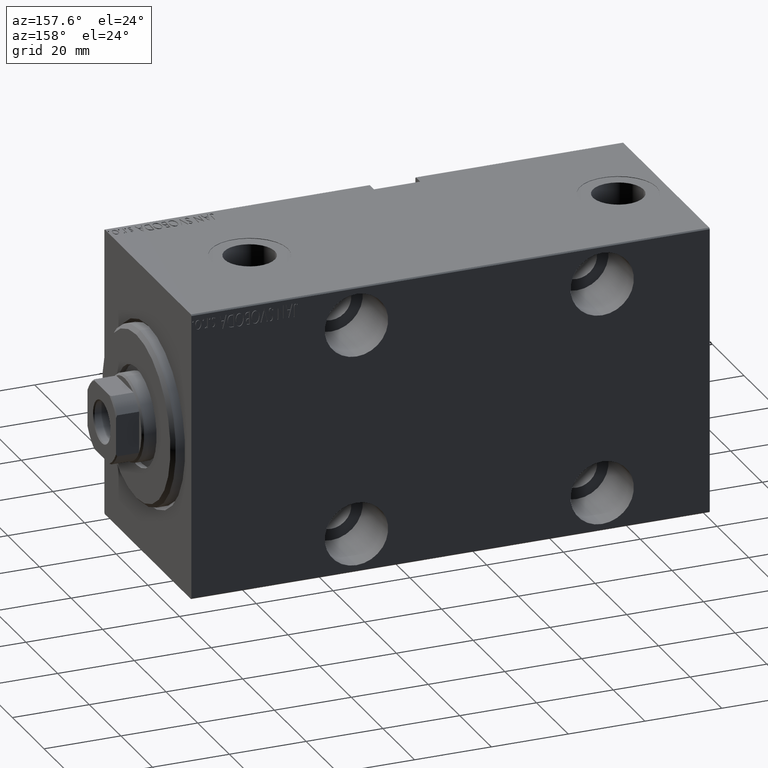
[diagram: clean part render]
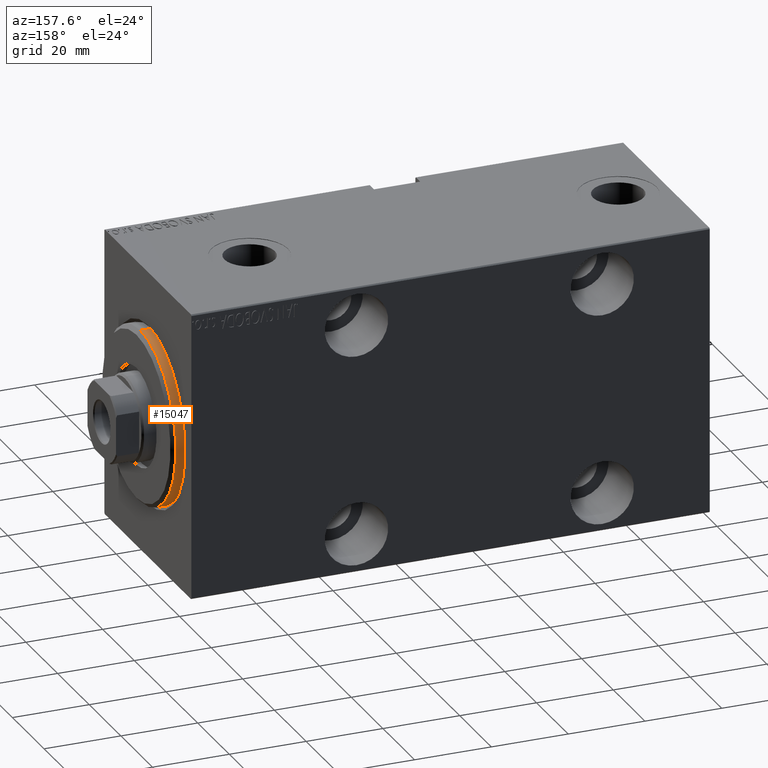
[diagram: same view with one face highlighted and labeled with its STEP entity id]
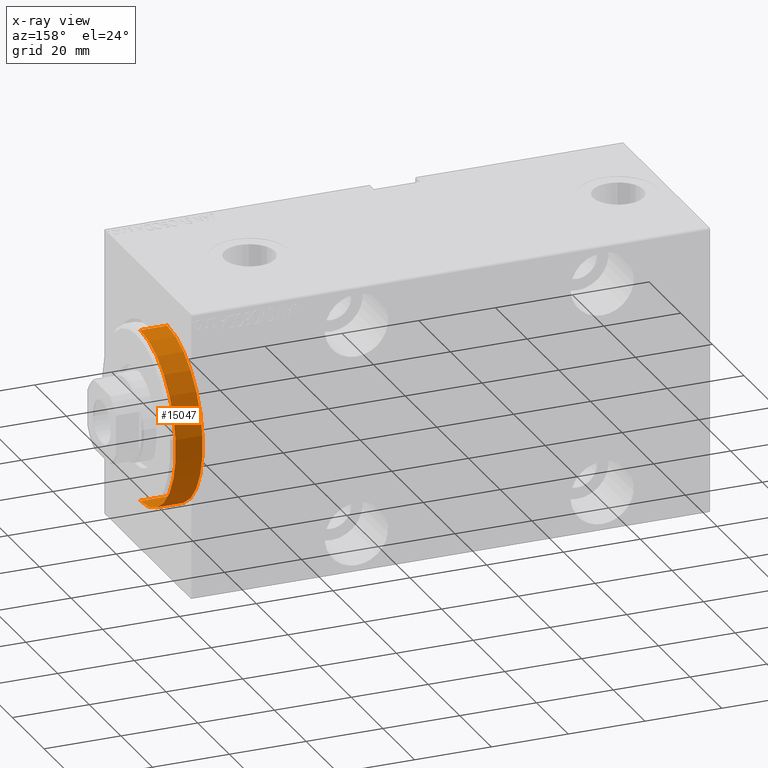
[diagram: x-ray of the same camera — body ghosted, the highlighted face saturated]
A machine part, auxiliary view. The second image highlights one B-rep face of the part: STEP entity #15047.
The next image is the same camera in x-ray: the body ghosted, the highlighted face saturated — about 0% of this face is hidden behind the body in this view.
In plain terms, the highlighted cylindrical surface (partial cylindrical patch) has radius 22.5 mm, axis along (-1, -0, -0).
Its self-contained STEP definition (entity closure, byte-faithful):
#12 = ORIENTED_EDGE ( 'NONE', *, *, #23462, .F. ) ;
#972 = AXIS2_PLACEMENT_3D ( 'NONE', #5473, #32786, #2548 ) ;
#2548 = DIRECTION ( 'NONE',  ( 0.000000000000000000, 0.000000000000000000, -1.000000000000000000 ) ) ;
#3211 = VERTEX_POINT ( 'NONE', #32354 ) ;
#3555 = VECTOR ( 'NONE', #25211, 1000.000000000000000 ) ;
#4240 = VERTEX_POINT ( 'NONE', #5262 ) ;
#4869 = VERTEX_POINT ( 'NONE', #10880 ) ;
#5262 = CARTESIAN_POINT ( 'NONE',  ( 2.000000000000006217, 2.755455298081545172E-15, -22.50000000000000355 ) ) ;
#5307 = CYLINDRICAL_SURFACE ( 'NONE', #30199, 22.50000000000000355 ) ;
#5473 = CARTESIAN_POINT ( 'NONE',  ( -5.000000000000000000, 0.000000000000000000, 0.000000000000000000 ) ) ;
#5561 = ORIENTED_EDGE ( 'NONE', *, *, #39818, .T. ) ;
#9894 = CARTESIAN_POINT ( 'NONE',  ( 3.000000000000000000, 0.000000000000000000, 22.50000000000000355 ) ) ;
#10880 = CARTESIAN_POINT ( 'NONE',  ( 2.000000000000006217, 0.000000000000000000, 22.50000000000000355 ) ) ;
#11906 = VERTEX_POINT ( 'NONE', #12604 ) ;
#12604 = CARTESIAN_POINT ( 'NONE',  ( -5.000000000000000000, 0.000000000000000000, 22.50000000000000355 ) ) ;
#15047 = ADVANCED_FACE ( 'NONE', ( #19190 ), #5307, .T. ) ;
#15099 = ORIENTED_EDGE ( 'NONE', *, *, #18333, .T. ) ;
#16851 = ORIENTED_EDGE ( 'NONE', *, *, #32027, .T. ) ;
#18333 = EDGE_CURVE ( 'NONE', #3211, #11906, #43852, .T. ) ;
#18375 = AXIS2_PLACEMENT_3D ( 'NONE', #21079, #34715, #18380 ) ;
#18380 = DIRECTION ( 'NONE',  ( 0.000000000000000000, 0.000000000000000000, -1.000000000000000000 ) ) ;
#18754 = CARTESIAN_POINT ( 'NONE',  ( 3.000000000000000000, 0.000000000000000000, 0.000000000000000000 ) ) ;
#19190 = FACE_OUTER_BOUND ( 'NONE', #41946, .T. ) ;
#21079 = CARTESIAN_POINT ( 'NONE',  ( 2.000000000000006217, 0.000000000000000000, 0.000000000000000000 ) ) ;
#21630 = CARTESIAN_POINT ( 'NONE',  ( 3.000000000000000000, 2.755455298081545172E-15, -22.50000000000000355 ) ) ;
#23462 = EDGE_CURVE ( 'NONE', #4869, #11906, #33845, .T. ) ;
#25211 = DIRECTION ( 'NONE',  ( -1.000000000000000000, -0.000000000000000000, -0.000000000000000000 ) ) ;
#30199 = AXIS2_PLACEMENT_3D ( 'NONE', #18754, #39337, #32837 ) ;
#31943 = CIRCLE ( 'NONE', #18375, 22.50000000000000355 ) ;
#32027 = EDGE_CURVE ( 'NONE', #4869, #4240, #31943, .T. ) ;
#32354 = CARTESIAN_POINT ( 'NONE',  ( -5.000000000000000000, 2.755455298081545172E-15, -22.50000000000000355 ) ) ;
#32786 = DIRECTION ( 'NONE',  ( 1.000000000000000000, 0.000000000000000000, 0.000000000000000000 ) ) ;
#32837 = DIRECTION ( 'NONE',  ( 0.000000000000000000, 0.000000000000000000, 1.000000000000000000 ) ) ;
#33845 = LINE ( 'NONE', #9894, #36134 ) ;
#34715 = DIRECTION ( 'NONE',  ( -1.000000000000000000, 0.000000000000000000, 0.000000000000000000 ) ) ;
#36134 = VECTOR ( 'NONE', #41005, 1000.000000000000000 ) ;
#38626 = LINE ( 'NONE', #21630, #3555 ) ;
#39337 = DIRECTION ( 'NONE',  ( -1.000000000000000000, -0.000000000000000000, -0.000000000000000000 ) ) ;
#39818 = EDGE_CURVE ( 'NONE', #4240, #3211, #38626, .T. ) ;
#41005 = DIRECTION ( 'NONE',  ( -1.000000000000000000, -0.000000000000000000, -0.000000000000000000 ) ) ;
#41946 = EDGE_LOOP ( 'NONE', ( #16851, #5561, #15099, #12 ) ) ;
#43852 = CIRCLE ( 'NONE', #972, 22.50000000000000355 ) ;